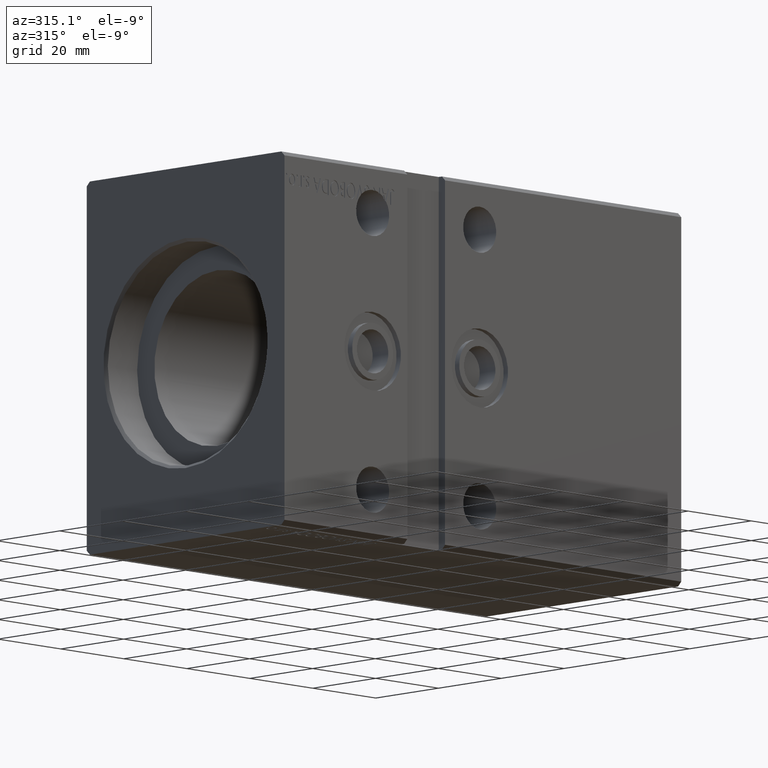
[diagram: clean part render]
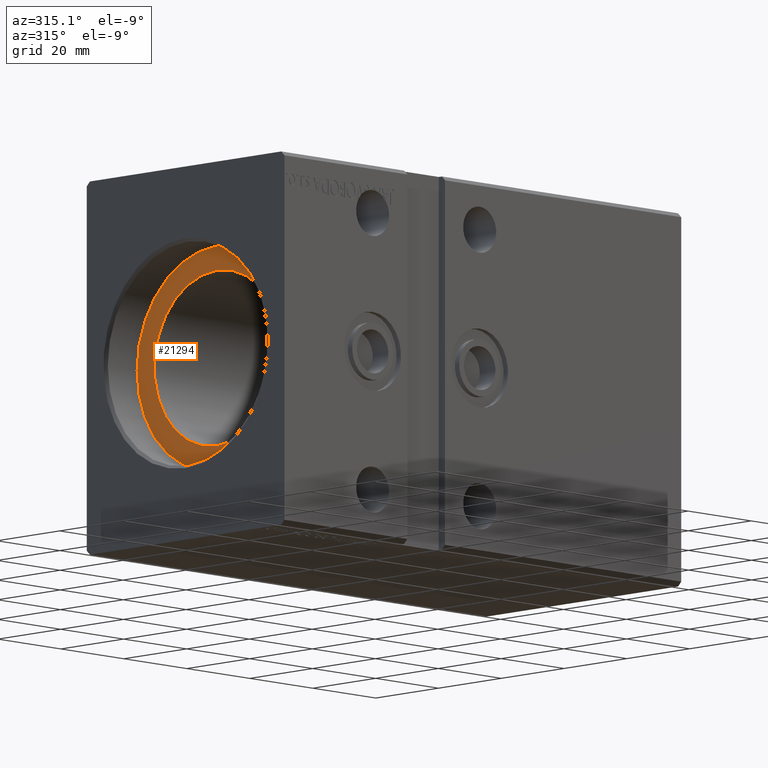
[diagram: same view with one face highlighted and labeled with its STEP entity id]
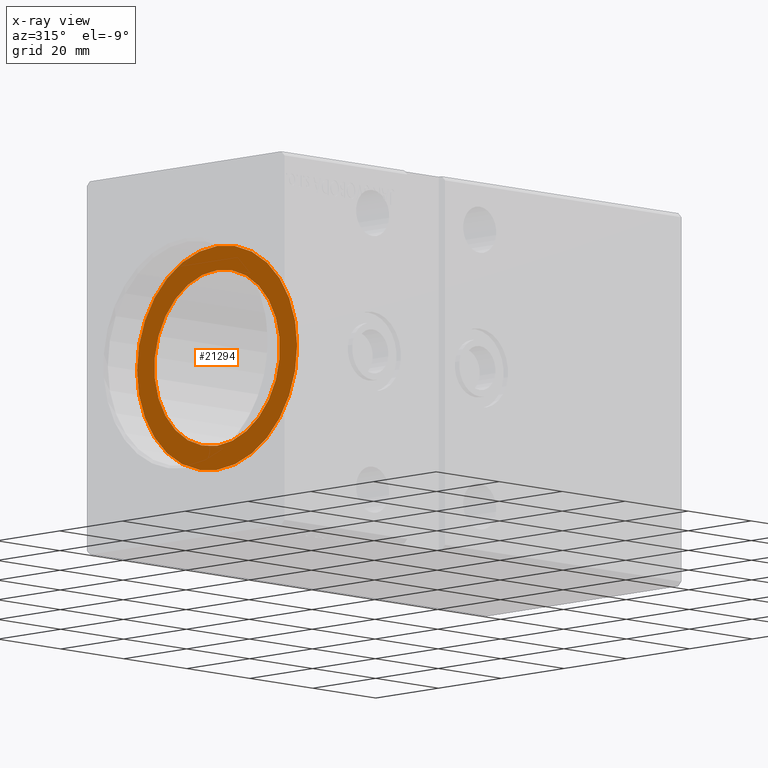
[diagram: x-ray of the same camera — body ghosted, the highlighted face saturated]
A machine part, auxiliary view. The second image highlights one B-rep face of the part: STEP entity #21294.
The next image is the same camera in x-ray: the body ghosted, the highlighted face saturated — about 0% of this face is hidden behind the body in this view.
In plain terms, the highlighted planar face has unit normal (-1, 0, 0).
Its self-contained STEP definition (entity closure, byte-faithful):
#313 = DIRECTION ( 'NONE',  ( -1.000000000000000000, 0.000000000000000000, 0.000000000000000000 ) ) ;
#974 = ORIENTED_EDGE ( 'NONE', *, *, #40558, .F. ) ;
#1965 = CIRCLE ( 'NONE', #23629, 25.50000000000000000 ) ;
#2911 = DIRECTION ( 'NONE',  ( -1.000000000000000000, 0.000000000000000000, 0.000000000000000000 ) ) ;
#3270 = FACE_OUTER_BOUND ( 'NONE', #9939, .T. ) ;
#4150 = CARTESIAN_POINT ( 'NONE',  ( 9.999999999999994671, 2.449293598294706513E-15, -20.00000000000000000 ) ) ;
#6466 = CARTESIAN_POINT ( 'NONE',  ( 10.00000000000000000, 0.000000000000000000, 0.000000000000000000 ) ) ;
#6617 = CARTESIAN_POINT ( 'NONE',  ( 10.00000000000000000, 0.000000000000000000, 25.50000000000000000 ) ) ;
#6664 = CIRCLE ( 'NONE', #11934, 20.00000000000000000 ) ;
#6957 = DIRECTION ( 'NONE',  ( 0.000000000000000000, 0.000000000000000000, 1.000000000000000000 ) ) ;
#7186 = EDGE_CURVE ( 'NONE', #24958, #14334, #30087, .T. ) ;
#7667 = AXIS2_PLACEMENT_3D ( 'NONE', #31245, #9443, #40305 ) ;
#9345 = ORIENTED_EDGE ( 'NONE', *, *, #39504, .F. ) ;
#9443 = DIRECTION ( 'NONE',  ( -1.000000000000000000, 0.000000000000000000, 0.000000000000000000 ) ) ;
#9454 = ORIENTED_EDGE ( 'NONE', *, *, #7186, .T. ) ;
#9851 = CARTESIAN_POINT ( 'NONE',  ( 9.999999999999994671, 0.000000000000000000, 0.000000000000000000 ) ) ;
#9939 = EDGE_LOOP ( 'NONE', ( #15990, #9454 ) ) ;
#11934 = AXIS2_PLACEMENT_3D ( 'NONE', #33489, #36372, #17656 ) ;
#12722 = VERTEX_POINT ( 'NONE', #17835 ) ;
#12731 = FACE_BOUND ( 'NONE', #22742, .T. ) ;
#12846 = DIRECTION ( 'NONE',  ( 0.000000000000000000, 0.000000000000000000, 1.000000000000000000 ) ) ;
#14334 = VERTEX_POINT ( 'NONE', #6617 ) ;
#14999 = AXIS2_PLACEMENT_3D ( 'NONE', #25731, #2911, #28605 ) ;
#15990 = ORIENTED_EDGE ( 'NONE', *, *, #16159, .T. ) ;
#16159 = EDGE_CURVE ( 'NONE', #14334, #24958, #1965, .T. ) ;
#16634 = VERTEX_POINT ( 'NONE', #4150 ) ;
#17656 = DIRECTION ( 'NONE',  ( 0.000000000000000000, 0.000000000000000000, 1.000000000000000000 ) ) ;
#17835 = CARTESIAN_POINT ( 'NONE',  ( 9.999999999999994671, 0.000000000000000000, 20.00000000000000000 ) ) ;
#21294 = ADVANCED_FACE ( 'NONE', ( #12731, #3270 ), #28376, .T. ) ;
#22742 = EDGE_LOOP ( 'NONE', ( #974, #9345 ) ) ;
#23629 = AXIS2_PLACEMENT_3D ( 'NONE', #6466, #313, #12846 ) ;
#24958 = VERTEX_POINT ( 'NONE', #37215 ) ;
#25731 = CARTESIAN_POINT ( 'NONE',  ( 10.00000000000000000, 0.000000000000000000, 0.000000000000000000 ) ) ;
#28376 = PLANE ( 'NONE',  #7667 ) ;
#28605 = DIRECTION ( 'NONE',  ( 0.000000000000000000, 0.000000000000000000, 1.000000000000000000 ) ) ;
#28982 = CIRCLE ( 'NONE', #33602, 20.00000000000000000 ) ;
#30087 = CIRCLE ( 'NONE', #14999, 25.50000000000000000 ) ;
#31245 = CARTESIAN_POINT ( 'NONE',  ( 10.00000000000000000, 0.000000000000000000, 0.000000000000000000 ) ) ;
#33489 = CARTESIAN_POINT ( 'NONE',  ( 9.999999999999994671, 0.000000000000000000, 0.000000000000000000 ) ) ;
#33602 = AXIS2_PLACEMENT_3D ( 'NONE', #9851, #34523, #6957 ) ;
#34523 = DIRECTION ( 'NONE',  ( -1.000000000000000000, 0.000000000000000000, 0.000000000000000000 ) ) ;
#36372 = DIRECTION ( 'NONE',  ( -1.000000000000000000, 0.000000000000000000, 0.000000000000000000 ) ) ;
#37215 = CARTESIAN_POINT ( 'NONE',  ( 10.00000000000000000, 3.122849337825750222E-15, -25.50000000000000000 ) ) ;
#39504 = EDGE_CURVE ( 'NONE', #16634, #12722, #28982, .T. ) ;
#40305 = DIRECTION ( 'NONE',  ( 0.000000000000000000, 0.000000000000000000, 1.000000000000000000 ) ) ;
#40558 = EDGE_CURVE ( 'NONE', #12722, #16634, #6664, .T. ) ;